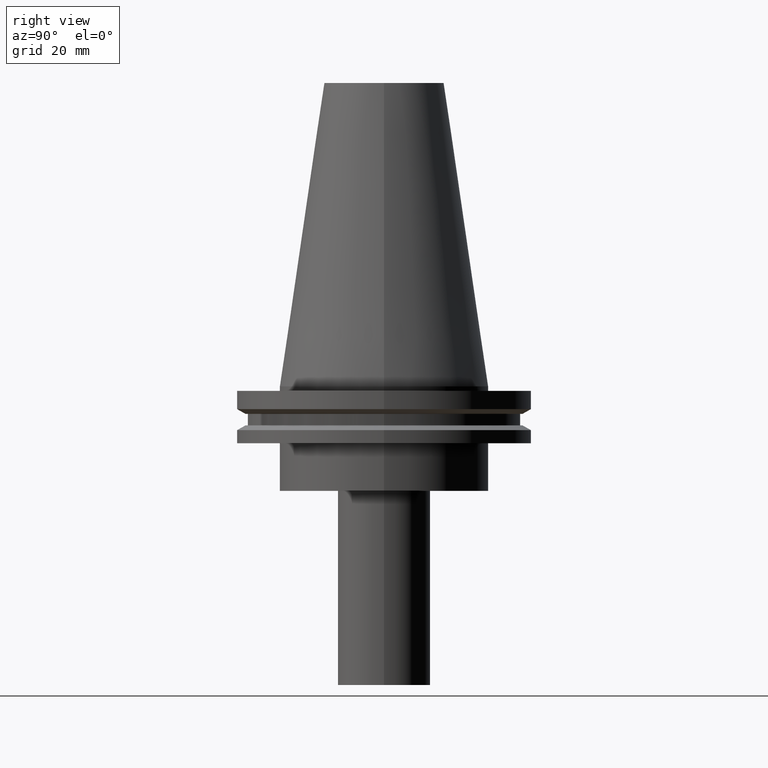
[diagram: clean part render]
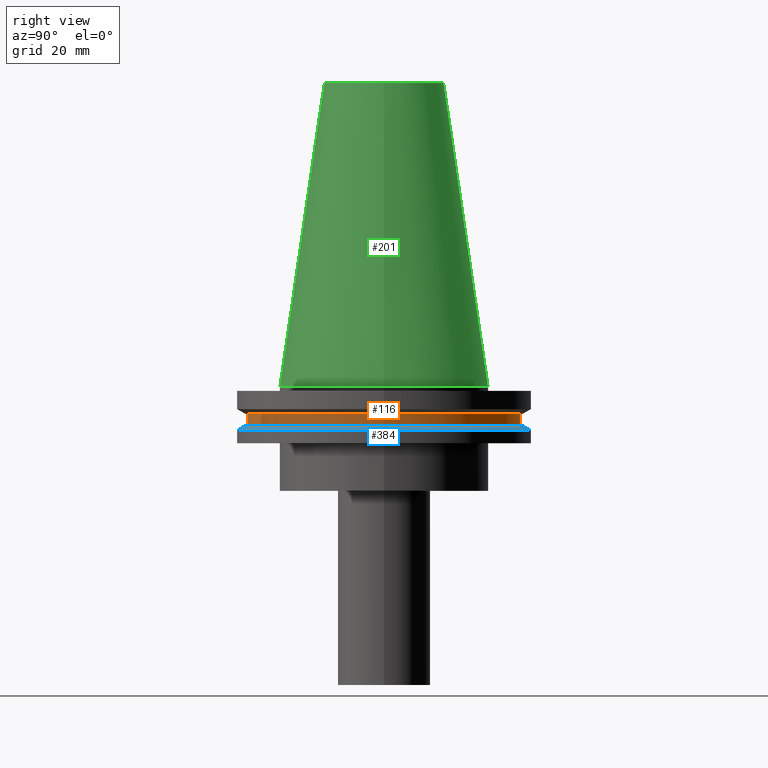
[diagram: same view with three faces highlighted in distinct colors, each labeled with its STEP entity id]
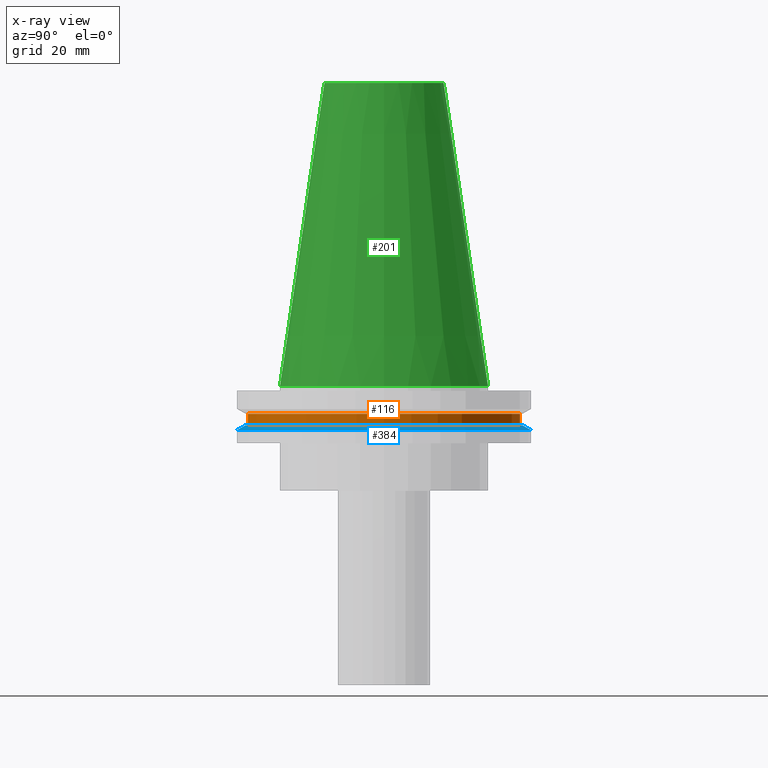
[diagram: x-ray of the same camera — body ghosted, the three highlighted faces saturated]
A machine part, right view with three faces highlighted in distinct colors.
The next image is the same camera in x-ray (body ghosted, the three faces saturated) — at least one of them is partly hidden behind the body in this view.
Their STEP definitions:

[orange] entity #116 — the highlighted cylindrical surface (bore or boss wall) has radius 45.645 mm, axis along (-0, -0, 1).
#31 = DIRECTION ( 'NONE',  ( 1.000000000000000000, 0.000000000000000000, 0.000000000000000000 ) ) ;
#70 = CARTESIAN_POINT ( 'NONE',  ( 0.000000000000000000, 0.000000000000000000, -9.204999999999991189 ) ) ;
#80 = DIRECTION ( 'NONE',  ( 1.000000000000000000, 0.000000000000000000, 0.000000000000000000 ) ) ;
#82 = AXIS2_PLACEMENT_3D ( 'NONE', #137, #112, #80 ) ;
#88 = ORIENTED_EDGE ( 'NONE', *, *, #294, .F. ) ;
#99 = EDGE_CURVE ( 'NONE', #102, #102, #103, .T. ) ;
#102 = VERTEX_POINT ( 'NONE', #220 ) ;
#103 = CIRCLE ( 'NONE', #82, 45.64500000000000313 ) ;
#112 = DIRECTION ( 'NONE',  ( -0.000000000000000000, -0.000000000000000000, 1.000000000000000000 ) ) ;
#116 = ADVANCED_FACE ( 'NONE', ( #292, #319 ), #225, .T. ) ;
#119 = AXIS2_PLACEMENT_3D ( 'NONE', #70, #188, #31 ) ;
#137 = CARTESIAN_POINT ( 'NONE',  ( 0.000000000000000000, 0.000000000000000000, -13.05499999999999794 ) ) ;
#188 = DIRECTION ( 'NONE',  ( -0.000000000000000000, -0.000000000000000000, 1.000000000000000000 ) ) ;
#196 = CARTESIAN_POINT ( 'NONE',  ( 45.64500000000000313, 0.000000000000000000, -9.204999999999991189 ) ) ;
#207 = EDGE_LOOP ( 'NONE', ( #88 ) ) ;
#220 = CARTESIAN_POINT ( 'NONE',  ( 45.64500000000000313, 0.000000000000000000, -13.05499999999999794 ) ) ;
#222 = EDGE_LOOP ( 'NONE', ( #359 ) ) ;
#225 = CYLINDRICAL_SURFACE ( 'NONE', #260, 45.64500000000000313 ) ;
#254 = VERTEX_POINT ( 'NONE', #196 ) ;
#260 = AXIS2_PLACEMENT_3D ( 'NONE', #357, #354, #261 ) ;
#261 = DIRECTION ( 'NONE',  ( 1.000000000000000000, 0.000000000000000000, 0.000000000000000000 ) ) ;
#291 = CIRCLE ( 'NONE', #119, 45.64500000000000313 ) ;
#292 = FACE_OUTER_BOUND ( 'NONE', #207, .T. ) ;
#294 = EDGE_CURVE ( 'NONE', #254, #254, #291, .T. ) ;
#319 = FACE_OUTER_BOUND ( 'NONE', #222, .T. ) ;
#354 = DIRECTION ( 'NONE',  ( -0.000000000000000000, -0.000000000000000000, 1.000000000000000000 ) ) ;
#357 = CARTESIAN_POINT ( 'NONE',  ( 0.000000000000000000, 0.000000000000000000, 101.5999999999999943 ) ) ;
#359 = ORIENTED_EDGE ( 'NONE', *, *, #99, .T. ) ;

[blue] entity #384 — the highlighted conical surface has half-angle 60 deg.
#3 = CARTESIAN_POINT ( 'NONE',  ( 0.000000000000000000, 0.000000000000000000, -14.65761014474876944 ) ) ;
#21 = AXIS2_PLACEMENT_3D ( 'NONE', #331, #60, #153 ) ;
#24 = AXIS2_PLACEMENT_3D ( 'NONE', #3, #40, #93 ) ;
#35 = ORIENTED_EDGE ( 'NONE', *, *, #214, .F. ) ;
#37 = CARTESIAN_POINT ( 'NONE',  ( 0.000000000000000000, 0.000000000000000000, -14.65761014474876944 ) ) ;
#40 = DIRECTION ( 'NONE',  ( -0.000000000000000000, -0.000000000000000000, 1.000000000000000000 ) ) ;
#57 = EDGE_LOOP ( 'NONE', ( #35 ) ) ;
#60 = DIRECTION ( 'NONE',  ( -0.000000000000000000, -0.000000000000000000, 1.000000000000000000 ) ) ;
#78 = CARTESIAN_POINT ( 'NONE',  ( 49.21499999999998920, 0.000000000000000000, -14.65761014474876944 ) ) ;
#93 = DIRECTION ( 'NONE',  ( 1.000000000000000000, 0.000000000000000000, 0.000000000000000000 ) ) ;
#125 = FACE_BOUND ( 'NONE', #57, .T. ) ;
#128 = CARTESIAN_POINT ( 'NONE',  ( 46.43919780457007818, 0.000000000000000000, -13.05499999999999794 ) ) ;
#153 = DIRECTION ( 'NONE',  ( 1.000000000000000000, 0.000000000000000000, 0.000000000000000000 ) ) ;
#171 = CIRCLE ( 'NONE', #24, 49.21499999999998920 ) ;
#193 = FACE_OUTER_BOUND ( 'NONE', #391, .T. ) ;
#200 = CIRCLE ( 'NONE', #21, 46.43919780457007818 ) ;
#214 = EDGE_CURVE ( 'NONE', #275, #275, #200, .T. ) ;
#247 = DIRECTION ( 'NONE',  ( -1.000000000000000000, 0.000000000000000000, 0.000000000000000000 ) ) ;
#275 = VERTEX_POINT ( 'NONE', #128 ) ;
#331 = CARTESIAN_POINT ( 'NONE',  ( 0.000000000000000000, 0.000000000000000000, -13.05499999999999794 ) ) ;
#332 = CONICAL_SURFACE ( 'NONE', #364, 49.21499999999998920, 1.047197551196554333 ) ;
#343 = EDGE_CURVE ( 'NONE', #382, #382, #171, .T. ) ;
#364 = AXIS2_PLACEMENT_3D ( 'NONE', #37, #368, #247 ) ;
#365 = ORIENTED_EDGE ( 'NONE', *, *, #343, .T. ) ;
#368 = DIRECTION ( 'NONE',  ( 0.000000000000000000, 0.000000000000000000, -1.000000000000000000 ) ) ;
#382 = VERTEX_POINT ( 'NONE', #78 ) ;
#384 = ADVANCED_FACE ( 'NONE', ( #125, #193 ), #332, .T. ) ;
#391 = EDGE_LOOP ( 'NONE', ( #365 ) ) ;

[green] entity #201 — the highlighted conical surface has half-angle 8.297 deg.
#2 = AXIS2_PLACEMENT_3D ( 'NONE', #144, #334, #86 ) ;
#27 = EDGE_LOOP ( 'NONE', ( #335 ) ) ;
#47 = VERTEX_POINT ( 'NONE', #76 ) ;
#51 = DIRECTION ( 'NONE',  ( 1.000000000000000000, 0.000000000000000000, 0.000000000000000000 ) ) ;
#67 = CARTESIAN_POINT ( 'NONE',  ( 20.10819343178871321, 0.000000000000000000, 101.5999999999999801 ) ) ;
#74 = CIRCLE ( 'NONE', #293, 34.92499999999999005 ) ;
#76 = CARTESIAN_POINT ( 'NONE',  ( 34.92499999999999005, 0.000000000000000000, 0.000000000000000000 ) ) ;
#79 = EDGE_CURVE ( 'NONE', #313, #313, #180, .T. ) ;
#86 = DIRECTION ( 'NONE',  ( -1.000000000000000000, 0.000000000000000000, 0.000000000000000000 ) ) ;
#91 = CARTESIAN_POINT ( 'NONE',  ( 0.000000000000000000, 0.000000000000000000, 0.000000000000000000 ) ) ;
#120 = FACE_OUTER_BOUND ( 'NONE', #393, .T. ) ;
#121 = AXIS2_PLACEMENT_3D ( 'NONE', #203, #229, #51 ) ;
#144 = CARTESIAN_POINT ( 'NONE',  ( 0.000000000000000000, 0.000000000000000000, 0.000000000000000000 ) ) ;
#148 = ORIENTED_EDGE ( 'NONE', *, *, #280, .T. ) ;
#150 = DIRECTION ( 'NONE',  ( 1.000000000000000000, 0.000000000000000000, 0.000000000000000000 ) ) ;
#178 = DIRECTION ( 'NONE',  ( -0.000000000000000000, -0.000000000000000000, 1.000000000000000000 ) ) ;
#180 = CIRCLE ( 'NONE', #121, 20.10819343178871321 ) ;
#194 = CONICAL_SURFACE ( 'NONE', #2, 34.92499999999999005, 0.1448138465474119452 ) ;
#201 = ADVANCED_FACE ( 'NONE', ( #231, #120 ), #194, .T. ) ;
#203 = CARTESIAN_POINT ( 'NONE',  ( 0.000000000000000000, 0.000000000000000000, 101.5999999999999801 ) ) ;
#229 = DIRECTION ( 'NONE',  ( -0.000000000000000000, -0.000000000000000000, 1.000000000000000000 ) ) ;
#231 = FACE_BOUND ( 'NONE', #27, .T. ) ;
#280 = EDGE_CURVE ( 'NONE', #47, #47, #74, .T. ) ;
#293 = AXIS2_PLACEMENT_3D ( 'NONE', #91, #178, #150 ) ;
#313 = VERTEX_POINT ( 'NONE', #67 ) ;
#334 = DIRECTION ( 'NONE',  ( 0.000000000000000000, 0.000000000000000000, -1.000000000000000000 ) ) ;
#335 = ORIENTED_EDGE ( 'NONE', *, *, #79, .F. ) ;
#393 = EDGE_LOOP ( 'NONE', ( #148 ) ) ;